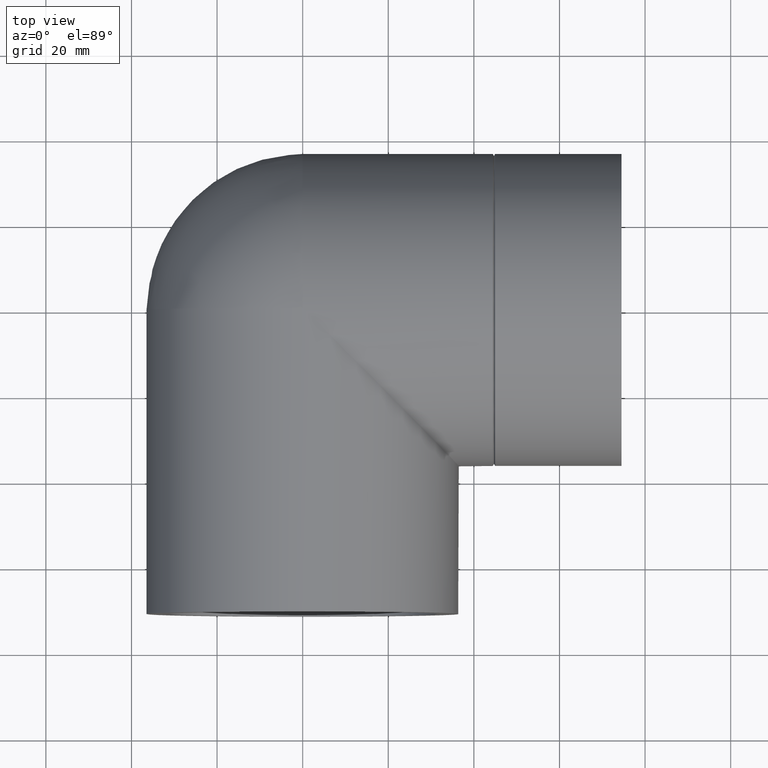
[diagram: clean part render]
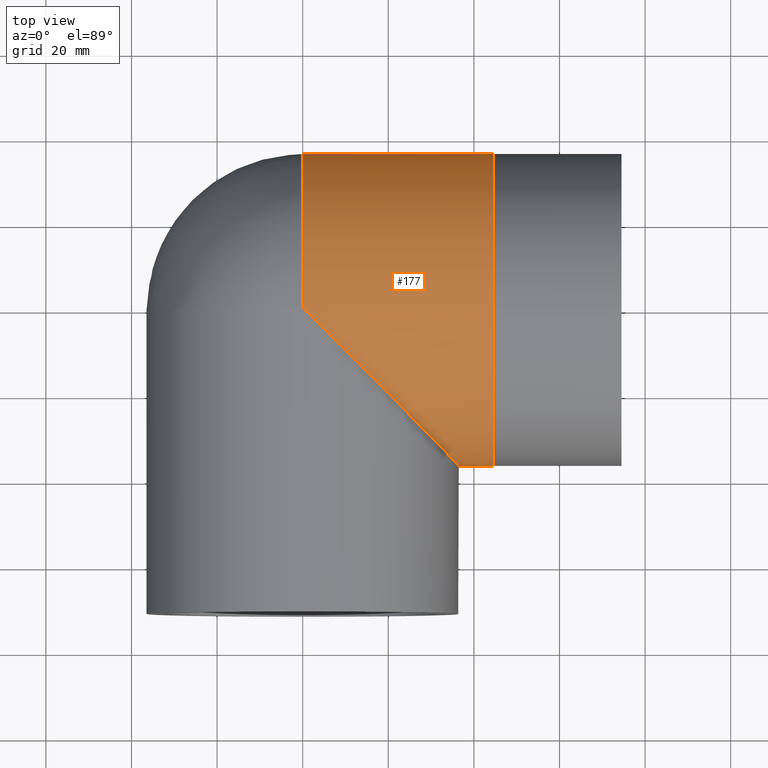
[diagram: same view with one face highlighted and labeled with its STEP entity id]
A machine part, top view. The second image highlights one B-rep face of the part: STEP entity #177.
In plain terms, the highlighted cylindrical surface (bore or boss wall) has radius 36.5 mm, axis along (1, 0, 0).
Its self-contained STEP definition (entity closure, byte-faithful):
#17=ELLIPSE('',#204,51.618795026618,36.5);
#33=FACE_BOUND('',#73,.T.);
#48=FACE_OUTER_BOUND('',#72,.T.);
#72=EDGE_LOOP('',(#149,#150));
#73=EDGE_LOOP('',(#151));
#90=CIRCLE('',#200,36.5);
#93=CIRCLE('',#207,36.5);
#105=VERTEX_POINT('',#304);
#106=VERTEX_POINT('',#305);
#108=VERTEX_POINT('',#314);
#120=EDGE_CURVE('',#105,#106,#90,.T.);
#123=EDGE_CURVE('',#106,#105,#17,.T.);
#124=EDGE_CURVE('',#108,#108,#93,.T.);
#149=ORIENTED_EDGE('',*,*,#123,.T.);
#150=ORIENTED_EDGE('',*,*,#120,.T.);
#151=ORIENTED_EDGE('',*,*,#124,.F.);
#165=CYLINDRICAL_SURFACE('',#206,36.5);
#177=ADVANCED_FACE('',(#48,#33),#165,.T.);
#200=AXIS2_PLACEMENT_3D('',#306,#249,#250);
#204=AXIS2_PLACEMENT_3D('',#311,#257,#258);
#206=AXIS2_PLACEMENT_3D('',#313,#261,#262);
#207=AXIS2_PLACEMENT_3D('',#315,#263,#264);
#249=DIRECTION('center_axis',(1.,0.,0.));
#250=DIRECTION('ref_axis',(0.,0.,-1.));
#257=DIRECTION('center_axis',(0.707106781186548,0.707106781186548,0.));
#258=DIRECTION('ref_axis',(-0.707106781186547,0.707106781186548,0.));
#261=DIRECTION('center_axis',(1.,0.,0.));
#262=DIRECTION('ref_axis',(0.,1.,0.));
#263=DIRECTION('center_axis',(1.,0.,0.));
#264=DIRECTION('ref_axis',(0.,0.,-1.));
#304=CARTESIAN_POINT('',(0.,-2.73706160335789E-31,-36.5));
#305=CARTESIAN_POINT('',(0.,-2.73706160335789E-31,36.5));
#306=CARTESIAN_POINT('Origin',(0.,0.,0.));
#311=CARTESIAN_POINT('Origin',(0.,0.,0.));
#313=CARTESIAN_POINT('Origin',(22.225,0.,0.));
#314=CARTESIAN_POINT('',(44.45,36.5,0.));
#315=CARTESIAN_POINT('Origin',(44.45,0.,0.));